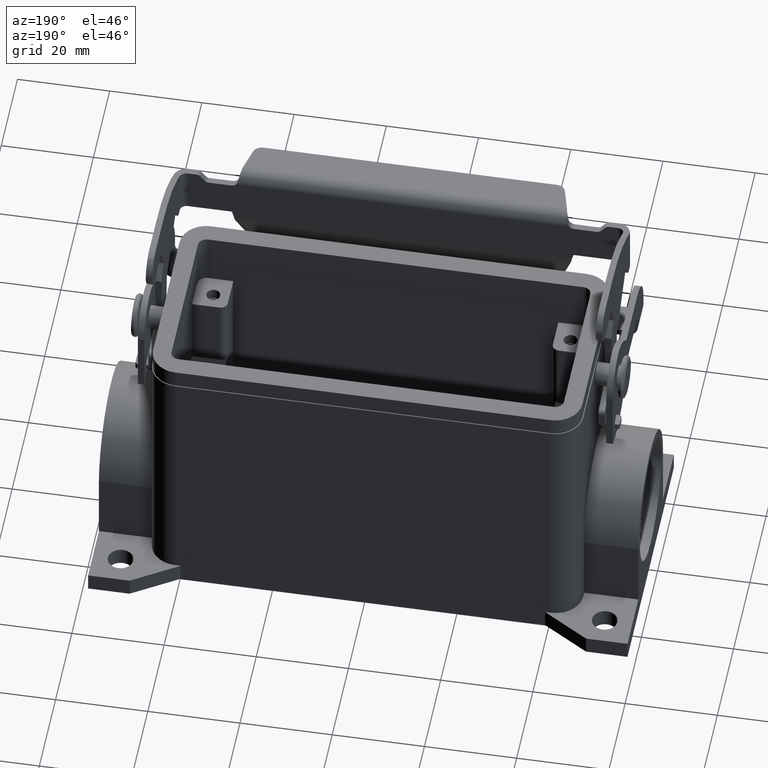
[diagram: clean part render]
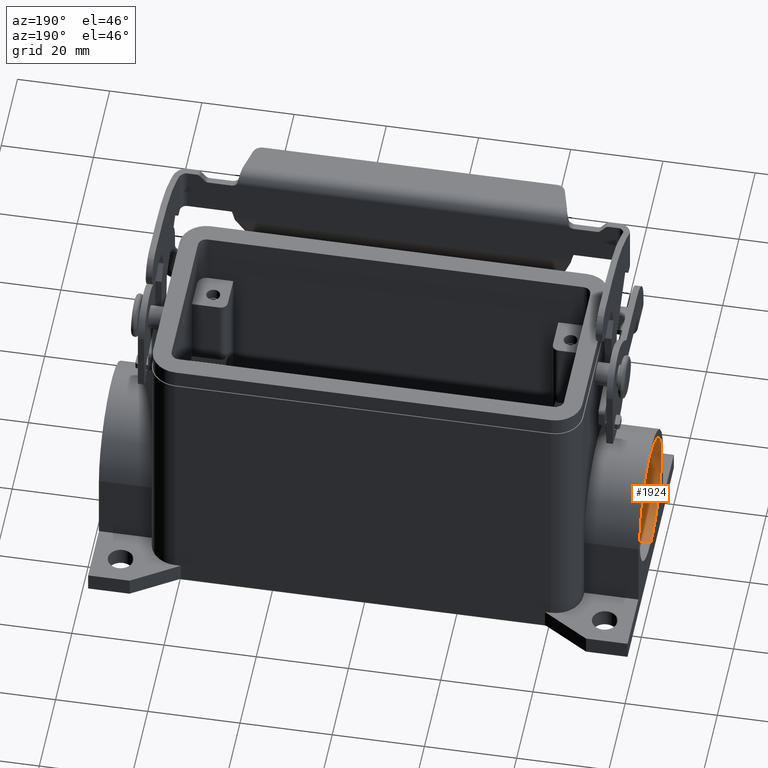
[diagram: same view with one face highlighted and labeled with its STEP entity id]
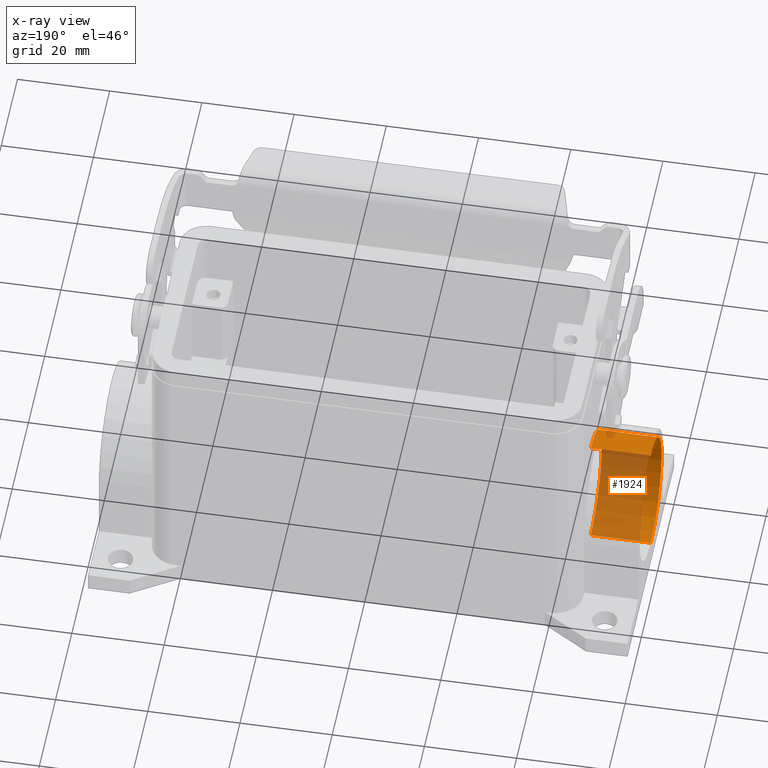
[diagram: x-ray of the same camera — body ghosted, the highlighted face saturated]
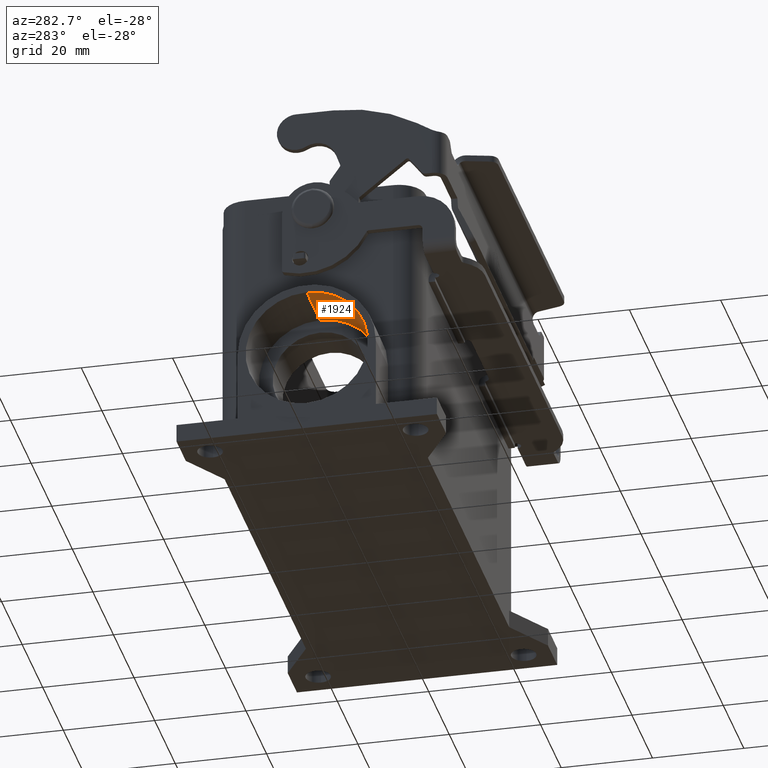
[diagram: same view with one face highlighted and labeled with its STEP entity id]
A machine part, auxiliary view. The second image highlights one B-rep face of the part: STEP entity #1924.
The next image is the same camera in x-ray: the body ghosted, the highlighted face saturated — about 63% of this face is hidden behind the body in this view.
A second angle (auxiliary view) of the same face is appended — the face is thin or edge-on in the first view.
In plain terms, the highlighted cylindrical surface (partial cylindrical patch) has radius 13.39 mm, axis along (1, 0, 0).
Its self-contained STEP definition (entity closure, byte-faithful):
#1883=CARTESIAN_POINT('',(-52.000000000000014,0.0,-36.610000000000007));
#1884=DIRECTION('',(1.0,0.0,0.0));
#1885=DIRECTION('',(0.0,0.0,1.0));
#1886=AXIS2_PLACEMENT_3D('',#1883,#1884,#1885);
#1887=CYLINDRICAL_SURFACE('',#1886,13.390000000000031);
#1888=CARTESIAN_POINT('',(-45.500000000000007,0.0,-23.219999999999974));
#1889=VERTEX_POINT('',#1888);
#1890=CARTESIAN_POINT('',(-58.500000000000007,0.0,-23.219999999999970));
#1891=VERTEX_POINT('',#1890);
#1892=CARTESIAN_POINT('',(-45.500000000000007,0.0,-23.219999999999974));
#1893=DIRECTION('',(-1.0,0.0,0.0));
#1894=VECTOR('',#1893,13.0);
#1895=LINE('',#1892,#1894);
#1896=EDGE_CURVE('',#1889,#1891,#1895,.T.);
#1897=ORIENTED_EDGE('',*,*,#1896,.F.);
#1898=CARTESIAN_POINT('',(-45.500000000000007,-1.639748E-015,-50.000000000000036));
#1899=VERTEX_POINT('',#1898);
#1900=CARTESIAN_POINT('',(-45.500000000000007,0.0,-36.610000000000007));
#1901=DIRECTION('',(1.0,0.0,0.0));
#1902=DIRECTION('',(0.0,0.0,1.0));
#1903=AXIS2_PLACEMENT_3D('',#1900,#1901,#1902);
#1904=CIRCLE('',#1903,13.390000000000031);
#1905=EDGE_CURVE('',#1889,#1899,#1904,.T.);
#1906=ORIENTED_EDGE('',*,*,#1905,.T.);
#1907=CARTESIAN_POINT('',(-58.500000000000007,-1.639748E-015,-50.000000000000036));
#1908=VERTEX_POINT('',#1907);
#1909=CARTESIAN_POINT('',(-58.500000000000007,-1.639748E-015,-50.000000000000036));
#1910=DIRECTION('',(1.0,0.0,0.0));
#1911=VECTOR('',#1910,13.0);
#1912=LINE('',#1909,#1911);
#1913=EDGE_CURVE('',#1908,#1899,#1912,.T.);
#1914=ORIENTED_EDGE('',*,*,#1913,.F.);
#1915=CARTESIAN_POINT('',(-58.500000000000007,0.0,-36.610000000000007));
#1916=DIRECTION('',(1.0,0.0,0.0));
#1917=DIRECTION('',(0.0,0.0,1.0));
#1918=AXIS2_PLACEMENT_3D('',#1915,#1916,#1917);
#1919=CIRCLE('',#1918,13.390000000000031);
#1920=EDGE_CURVE('',#1891,#1908,#1919,.T.);
#1921=ORIENTED_EDGE('',*,*,#1920,.F.);
#1922=EDGE_LOOP('',(#1897,#1906,#1914,#1921));
#1923=FACE_OUTER_BOUND('',#1922,.T.);
#1924=ADVANCED_FACE('',(#1923),#1887,.F.);